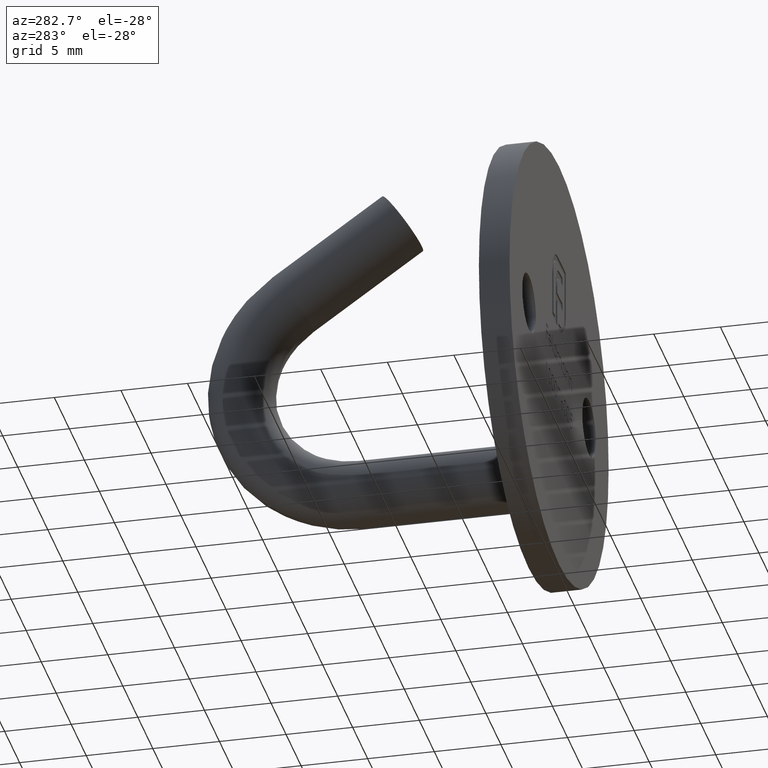
[diagram: clean part render]
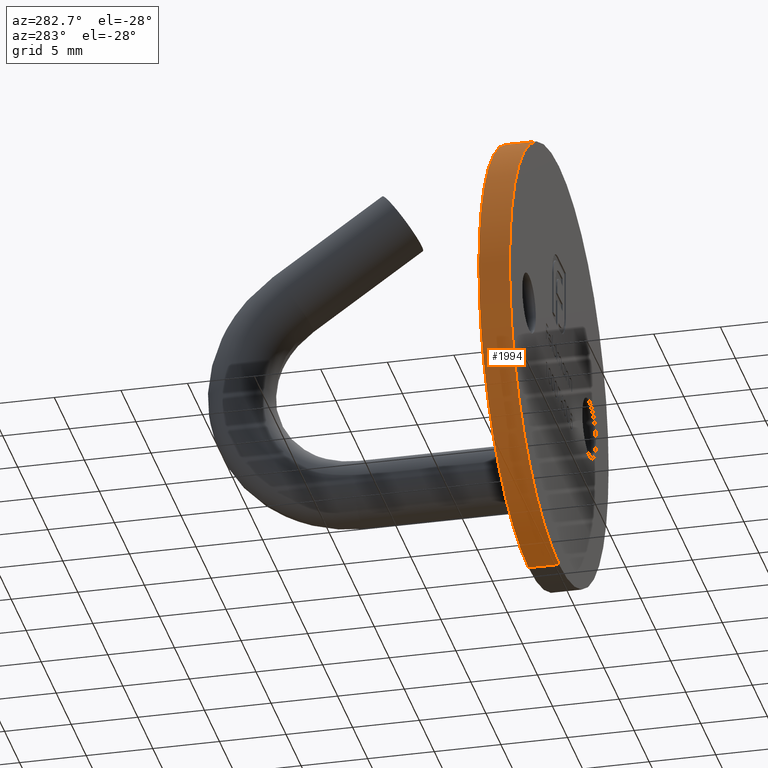
[diagram: same view with one face highlighted and labeled with its STEP entity id]
A machine part, auxiliary view. The second image highlights one B-rep face of the part: STEP entity #1994.
In plain terms, the highlighted cylindrical surface (partial cylindrical patch) has radius 16.5 mm, axis along (-0, -1, -0).
Its self-contained STEP definition (entity closure, byte-faithful):
#101 = DIRECTION ( 'NONE',  ( 0.000000000000000000, 0.000000000000000000, 1.000000000000000000 ) ) ;
#512 = CYLINDRICAL_SURFACE ( 'NONE', #12170, 16.50000000000000000 ) ;
#1117 = DIRECTION ( 'NONE',  ( -0.000000000000000000, -1.000000000000000000, -0.000000000000000000 ) ) ;
#1689 = VERTEX_POINT ( 'NONE', #4658 ) ;
#1994 = ADVANCED_FACE ( 'NONE', ( #15652 ), #512, .T. ) ;
#2015 = VECTOR ( 'NONE', #1117, 1000.000000000000000 ) ;
#2334 = EDGE_CURVE ( 'NONE', #1689, #8019, #10925, .T. ) ;
#2712 = CARTESIAN_POINT ( 'NONE',  ( 0.000000000000000000, 2.299999999999999822, 0.000000000000000000 ) ) ;
#3012 = CARTESIAN_POINT ( 'NONE',  ( 0.000000000000000000, 0.000000000000000000, 0.000000000000000000 ) ) ;
#3707 = CARTESIAN_POINT ( 'NONE',  ( 2.020667218593133100E-15, 2.299999999999999822, 16.50000000000000000 ) ) ;
#4185 = EDGE_CURVE ( 'NONE', #13233, #10111, #11401, .T. ) ;
#4658 = CARTESIAN_POINT ( 'NONE',  ( 0.000000000000000000, 2.299999999999999822, -16.50000000000000000 ) ) ;
#4971 = AXIS2_PLACEMENT_3D ( 'NONE', #3012, #10198, #14881 ) ;
#5239 = EDGE_LOOP ( 'NONE', ( #13860, #7006, #6013, #10907 ) ) ;
#6013 = ORIENTED_EDGE ( 'NONE', *, *, #11828, .T. ) ;
#6097 = DIRECTION ( 'NONE',  ( -0.000000000000000000, -1.000000000000000000, -0.000000000000000000 ) ) ;
#6687 = AXIS2_PLACEMENT_3D ( 'NONE', #2712, #12240, #101 ) ;
#7006 = ORIENTED_EDGE ( 'NONE', *, *, #2334, .F. ) ;
#7039 = DIRECTION ( 'NONE',  ( 0.000000000000000000, 0.000000000000000000, -1.000000000000000000 ) ) ;
#7233 = VECTOR ( 'NONE', #6097, 1000.000000000000000 ) ;
#8019 = VERTEX_POINT ( 'NONE', #3707 ) ;
#8075 = CARTESIAN_POINT ( 'NONE',  ( 0.000000000000000000, 2.299999999999999822, 0.000000000000000000 ) ) ;
#8452 = CARTESIAN_POINT ( 'NONE',  ( 2.020667218593133100E-15, 0.000000000000000000, 16.50000000000000000 ) ) ;
#9764 = LINE ( 'NONE', #15633, #2015 ) ;
#10004 = CARTESIAN_POINT ( 'NONE',  ( 0.000000000000000000, 0.000000000000000000, -16.50000000000000000 ) ) ;
#10111 = VERTEX_POINT ( 'NONE', #8452 ) ;
#10198 = DIRECTION ( 'NONE',  ( 0.000000000000000000, 1.000000000000000000, 0.000000000000000000 ) ) ;
#10774 = EDGE_CURVE ( 'NONE', #8019, #10111, #9764, .T. ) ;
#10907 = ORIENTED_EDGE ( 'NONE', *, *, #4185, .T. ) ;
#10925 = CIRCLE ( 'NONE', #6687, 16.50000000000000000 ) ;
#11401 = CIRCLE ( 'NONE', #4971, 16.50000000000000000 ) ;
#11828 = EDGE_CURVE ( 'NONE', #1689, #13233, #14825, .T. ) ;
#12083 = CARTESIAN_POINT ( 'NONE',  ( 0.000000000000000000, 2.299999999999999822, -16.50000000000000000 ) ) ;
#12170 = AXIS2_PLACEMENT_3D ( 'NONE', #8075, #14186, #7039 ) ;
#12240 = DIRECTION ( 'NONE',  ( 0.000000000000000000, 1.000000000000000000, 0.000000000000000000 ) ) ;
#13233 = VERTEX_POINT ( 'NONE', #10004 ) ;
#13860 = ORIENTED_EDGE ( 'NONE', *, *, #10774, .F. ) ;
#14186 = DIRECTION ( 'NONE',  ( -0.000000000000000000, -1.000000000000000000, -0.000000000000000000 ) ) ;
#14825 = LINE ( 'NONE', #12083, #7233 ) ;
#14881 = DIRECTION ( 'NONE',  ( 0.000000000000000000, 0.000000000000000000, 1.000000000000000000 ) ) ;
#15633 = CARTESIAN_POINT ( 'NONE',  ( 2.020667218593133100E-15, 2.299999999999999822, 16.50000000000000000 ) ) ;
#15652 = FACE_OUTER_BOUND ( 'NONE', #5239, .T. ) ;